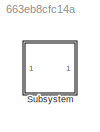
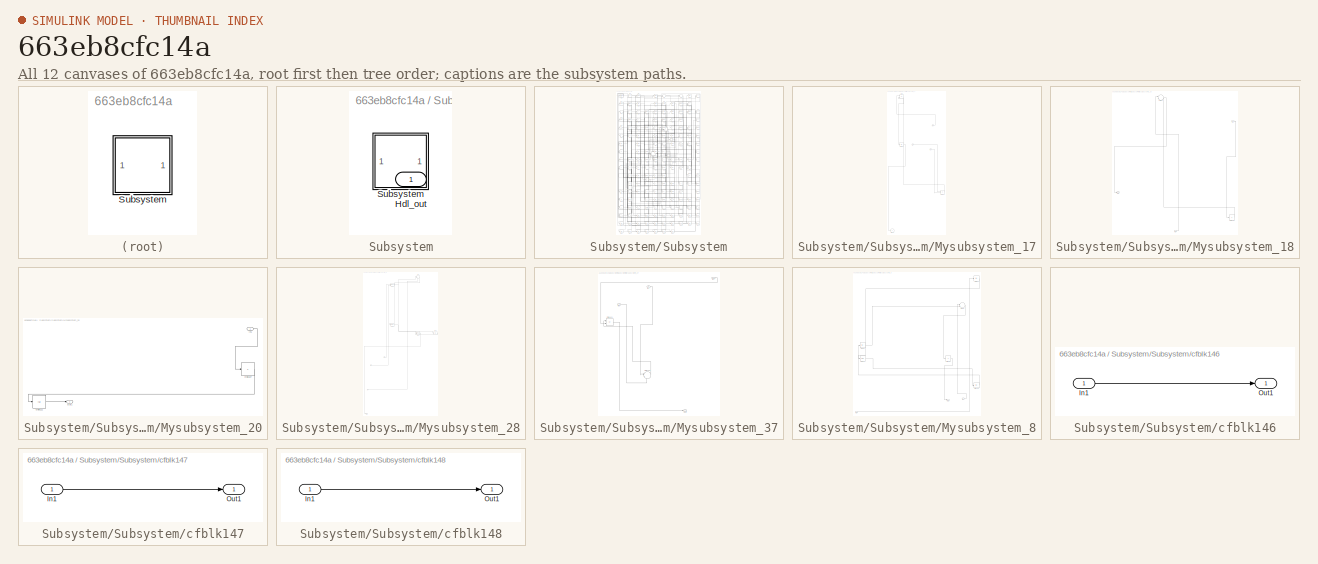
[diagram: thumbnail index - all 12 canvases of the model, root first then tree order]
MODEL slx_663eb8cfc14a
KIND model
CONFIG AbsTol = auto
CONFIG EnableMultiTasking = off
CONFIG FixedStep = auto
CONFIG MaxStep = auto
CONFIG MinStep = auto
CONFIG RelTol = 1e-3
CONFIG SampleTimeConstraint = Unconstrained
CONFIG SolverName = VariableStepAuto
CONFIG StartTime = 0.0
CONFIG StopTime = 10.0
BLOCK [SubSystem] Subsystem
BLOCK [Outport] Subsystem/Hdl_out
  OutDataTypeStr = uint8
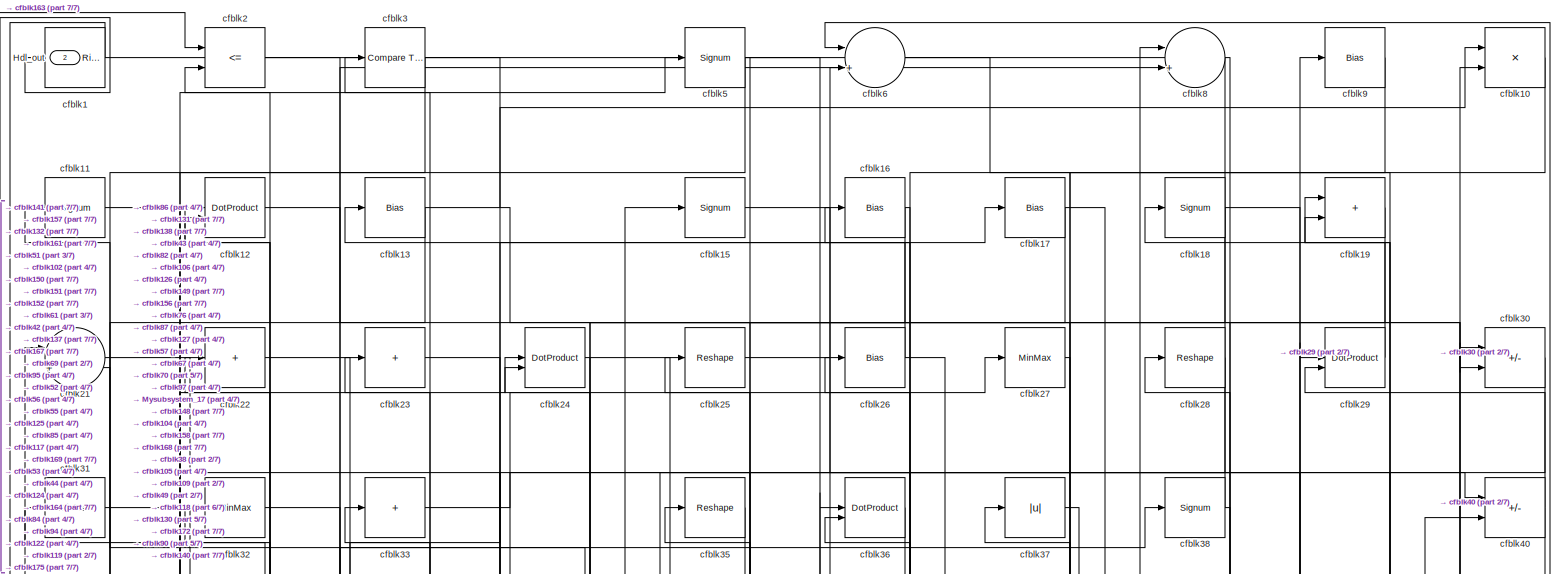
[diagram: Subsystem/Subsystem - part 1/7, full width, top band]
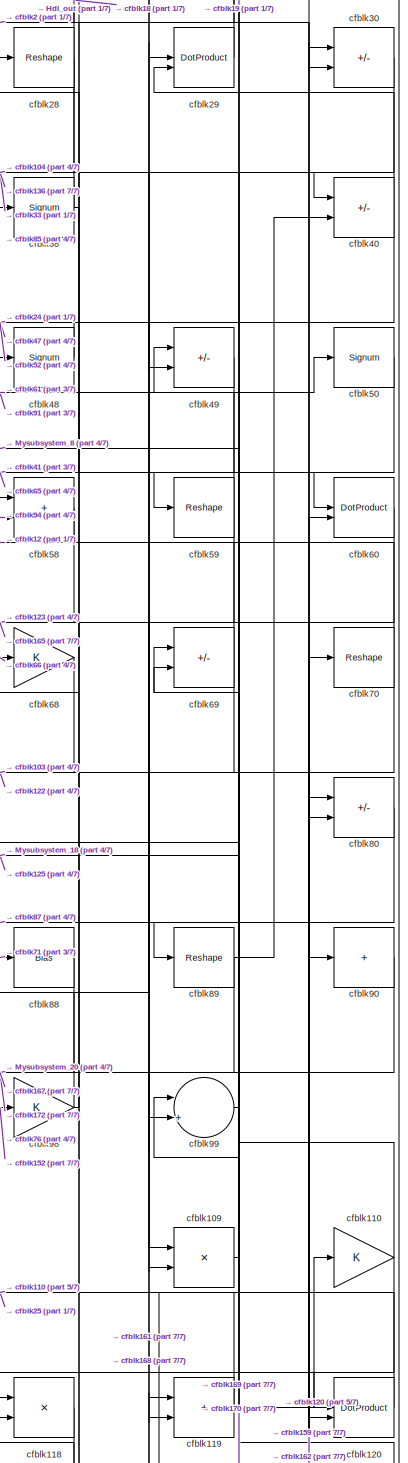
[diagram: Subsystem/Subsystem - part 2/7, middle right region]
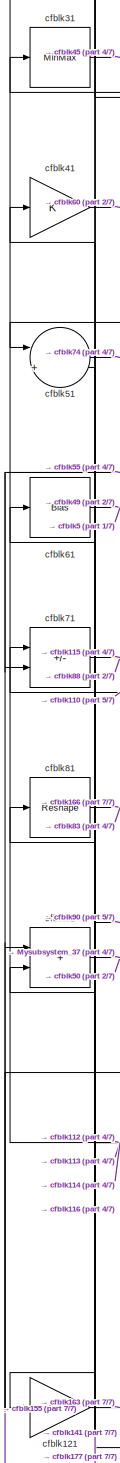
[diagram: Subsystem/Subsystem - part 3/7, middle left region]
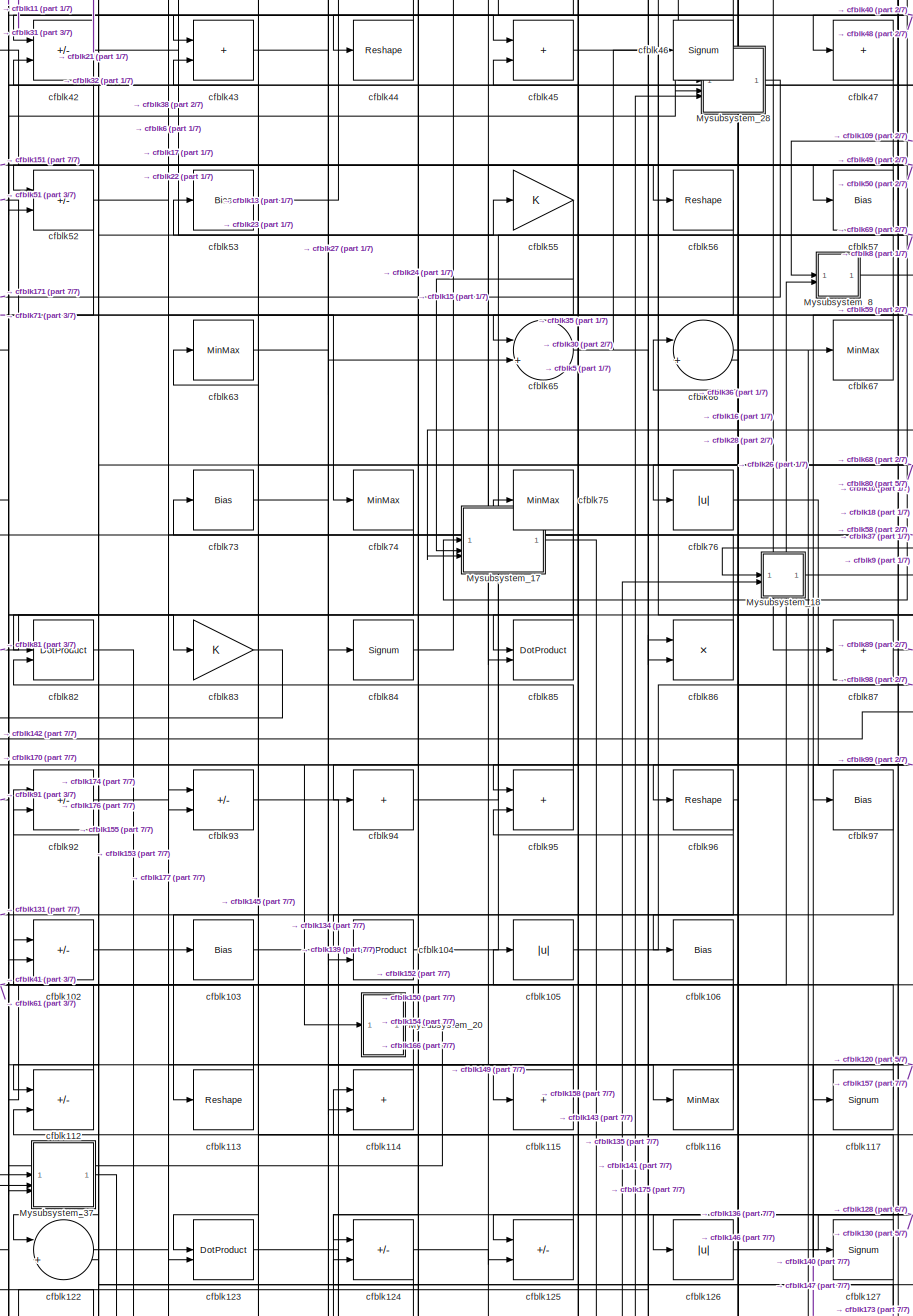
[diagram: Subsystem/Subsystem - part 4/7, central region]
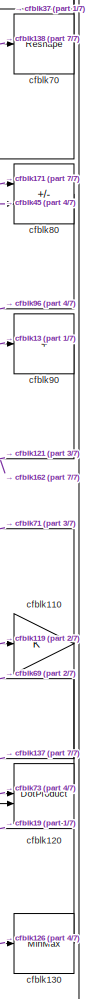
[diagram: Subsystem/Subsystem - part 5/7, middle right region]
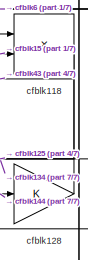
[diagram: Subsystem/Subsystem - part 6/7, bottom right region]
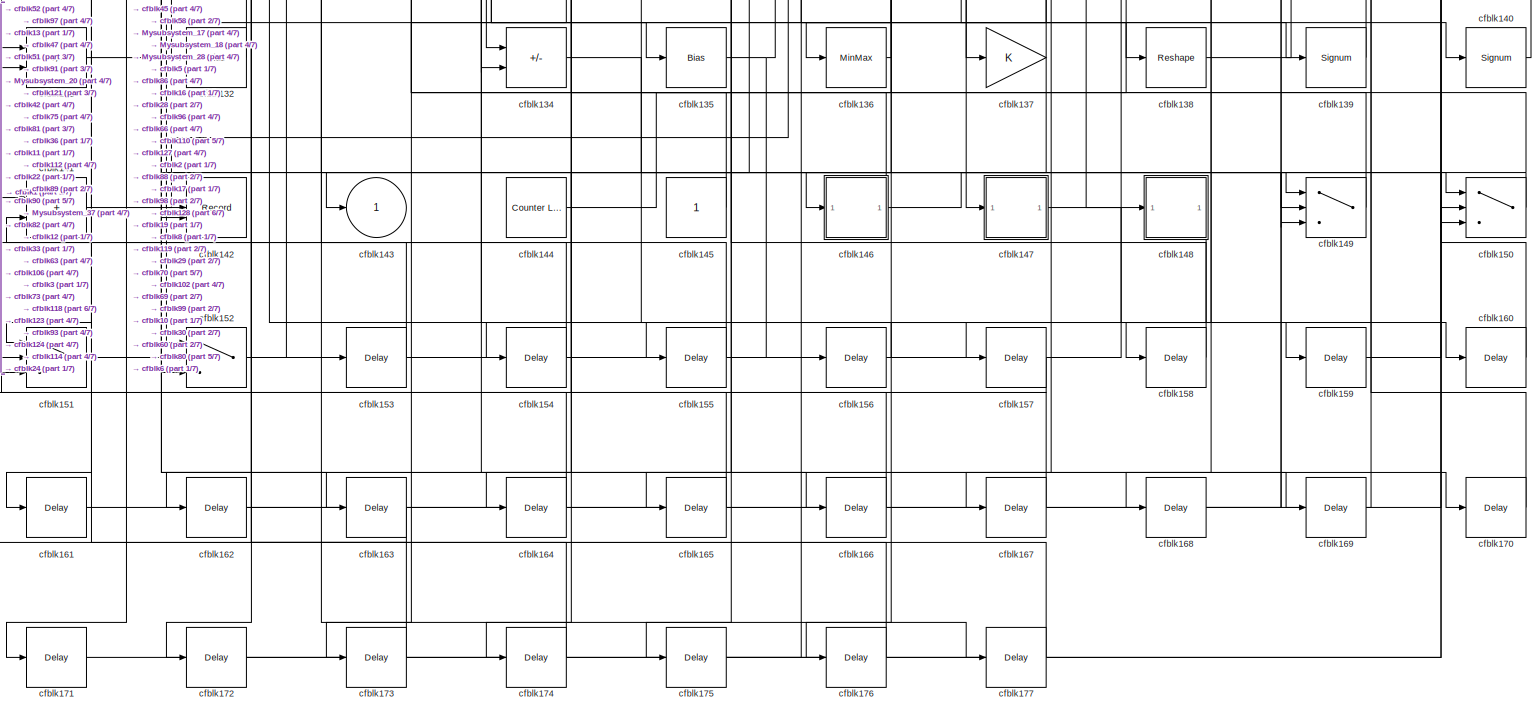
[diagram: Subsystem/Subsystem - part 7/7, full width, bottom band]
BLOCK [SubSystem] Subsystem/Subsystem
BLOCK [Outport] Subsystem/Subsystem/Hdl_out
  OutDataTypeStr = uint8
  Port = 2
BLOCK [SubSystem] Subsystem/Subsystem/Mysubsystem_17
  RTWFcnName = Mysubsystem_17
  RTWFcnNameOpts = User specified
  RTWFileNameOpts = Use function name
  RTWSystemCode = Reusable function
  TreatAsAtomicUnit = on
BLOCK [Inport] Subsystem/Subsystem/Mysubsystem_17/In1
BLOCK [Inport] Subsystem/Subsystem/Mysubsystem_17/In2
  Port = 2
BLOCK [Inport] Subsystem/Subsystem/Mysubsystem_17/In3
  Port = 3
BLOCK [Product] Subsystem/Subsystem/Mysubsystem_17/cfblk108
  Inputs = */
  RndMeth = Zero
  SaturateOnIntegerOverflow = on
BLOCK [Outport] Subsystem/Subsystem/Mysubsystem_17/cfblk143
  VectorParamsAs1DForOutWhenUnconnected = off
BLOCK [Sum] Subsystem/Subsystem/Mysubsystem_17/cfblk4
  IconShape = rectangular
  Inputs = +-
BLOCK [Abs] Subsystem/Subsystem/Mysubsystem_17/cfblk54
  SaturateOnIntegerOverflow = off
BLOCK [SubSystem] Subsystem/Subsystem/Mysubsystem_18
  RTWFcnName = Mysubsystem_18
  RTWFcnNameOpts = User specified
  RTWFileNameOpts = Use function name
  RTWSystemCode = Reusable function
  TreatAsAtomicUnit = on
BLOCK [Inport] Subsystem/Subsystem/Mysubsystem_18/In1
BLOCK [Inport] Subsystem/Subsystem/Mysubsystem_18/In2
  Port = 2
BLOCK [Outport] Subsystem/Subsystem/Mysubsystem_18/Out1
BLOCK [Sum] Subsystem/Subsystem/Mysubsystem_18/cfblk129
  IconShape = rectangular
  Inputs = +
BLOCK [Sum] Subsystem/Subsystem/Mysubsystem_18/cfblk34
  Inputs = |++
BLOCK [SubSystem] Subsystem/Subsystem/Mysubsystem_20
  RTWFcnName = Mysubsystem_20
  RTWFcnNameOpts = User specified
  RTWFileNameOpts = Use function name
  RTWSystemCode = Reusable function
  TreatAsAtomicUnit = on
BLOCK [Inport] Subsystem/Subsystem/Mysubsystem_20/In1
BLOCK [Outport] Subsystem/Subsystem/Mysubsystem_20/Out1
BLOCK [Sum] Subsystem/Subsystem/Mysubsystem_20/cfblk107
  IconShape = rectangular
  Inputs = +
BLOCK [Abs] Subsystem/Subsystem/Mysubsystem_20/cfblk111
  SaturateOnIntegerOverflow = off
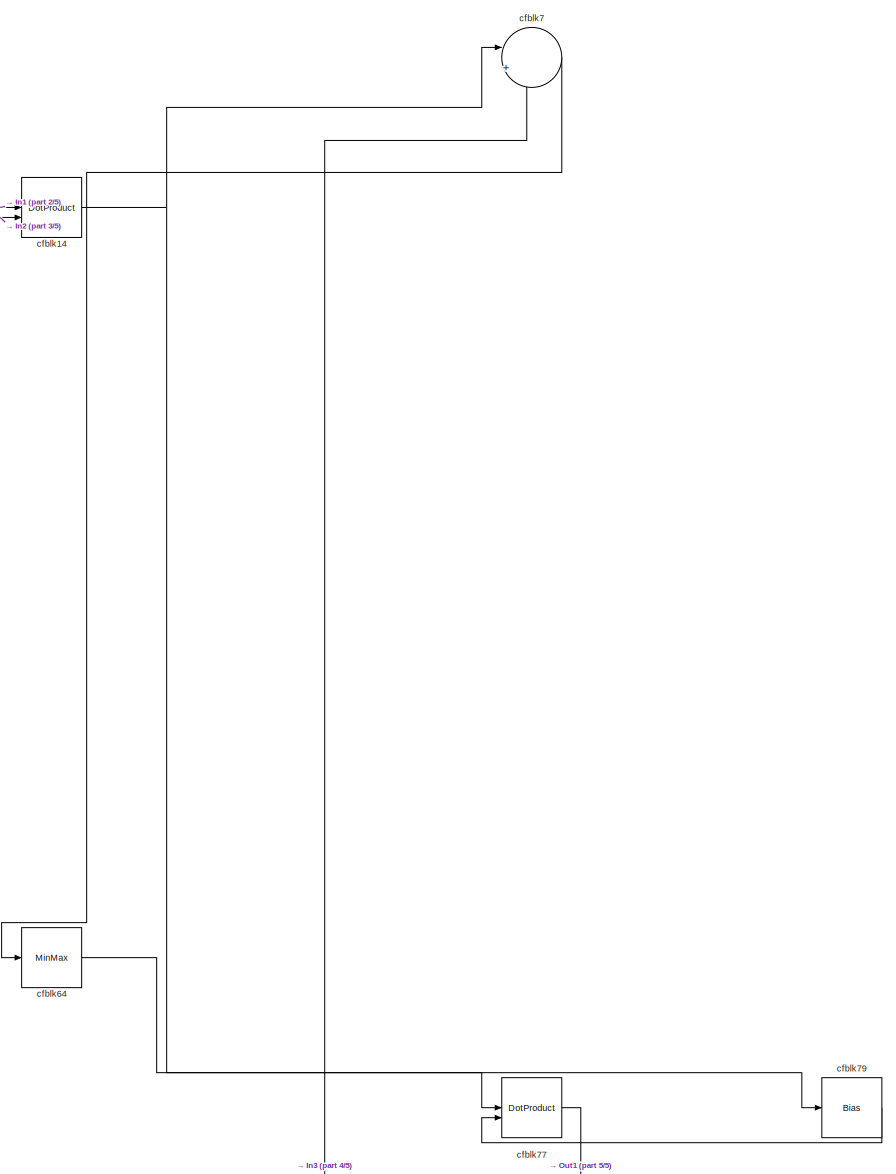
[diagram: Subsystem/Subsystem/Mysubsystem_28 - part 1/5, top right region]
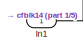
[diagram: Subsystem/Subsystem/Mysubsystem_28 - part 2/5, middle left region]
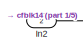
[diagram: Subsystem/Subsystem/Mysubsystem_28 - part 3/5, middle left region]
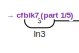
[diagram: Subsystem/Subsystem/Mysubsystem_28 - part 4/5, bottom left region]
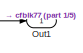
[diagram: Subsystem/Subsystem/Mysubsystem_28 - part 5/5, bottom left region]
BLOCK [SubSystem] Subsystem/Subsystem/Mysubsystem_28
  RTWFcnName = Mysubsystem_28
  RTWFcnNameOpts = User specified
  RTWFileNameOpts = Use function name
  RTWSystemCode = Reusable function
  TreatAsAtomicUnit = on
BLOCK [Inport] Subsystem/Subsystem/Mysubsystem_28/In1
BLOCK [Inport] Subsystem/Subsystem/Mysubsystem_28/In2
  Port = 2
BLOCK [Inport] Subsystem/Subsystem/Mysubsystem_28/In3
  Port = 3
BLOCK [Outport] Subsystem/Subsystem/Mysubsystem_28/Out1
BLOCK [DotProduct] Subsystem/Subsystem/Mysubsystem_28/cfblk14
  OutDataTypeStr = Inherit: Inherit via internal rule
BLOCK [MinMax] Subsystem/Subsystem/Mysubsystem_28/cfblk64
BLOCK [Sum] Subsystem/Subsystem/Mysubsystem_28/cfblk7
  Inputs = |++
BLOCK [DotProduct] Subsystem/Subsystem/Mysubsystem_28/cfblk77
  OutDataTypeStr = Inherit: Inherit via internal rule
BLOCK [Bias] Subsystem/Subsystem/Mysubsystem_28/cfblk79
  Bias = 0.0
  SaturateOnIntegerOverflow = off
BLOCK [SubSystem] Subsystem/Subsystem/Mysubsystem_37
  RTWFcnName = Mysubsystem_37
  RTWFcnNameOpts = User specified
  RTWFileNameOpts = Use function name
  RTWSystemCode = Reusable function
  TreatAsAtomicUnit = on
BLOCK [Inport] Subsystem/Subsystem/Mysubsystem_37/In1
BLOCK [Inport] Subsystem/Subsystem/Mysubsystem_37/In2
  Port = 2
BLOCK [Inport] Subsystem/Subsystem/Mysubsystem_37/In3
  Port = 3
BLOCK [Outport] Subsystem/Subsystem/Mysubsystem_37/Out1
BLOCK [Sum] Subsystem/Subsystem/Mysubsystem_37/cfblk101
  IconShape = rectangular
  Inputs = +-
BLOCK [Sum] Subsystem/Subsystem/Mysubsystem_37/cfblk133
  Inputs = |++
BLOCK [SubSystem] Subsystem/Subsystem/Mysubsystem_8
  RTWFcnName = Mysubsystem_8
  RTWFcnNameOpts = User specified
  RTWFileNameOpts = Use function name
  RTWSystemCode = Reusable function
  TreatAsAtomicUnit = on
BLOCK [Inport] Subsystem/Subsystem/Mysubsystem_8/In1
BLOCK [Inport] Subsystem/Subsystem/Mysubsystem_8/In2
  Port = 2
BLOCK [Outport] Subsystem/Subsystem/Mysubsystem_8/Out1
BLOCK [Abs] Subsystem/Subsystem/Mysubsystem_8/cfblk100
  SaturateOnIntegerOverflow = off
BLOCK [Abs] Subsystem/Subsystem/Mysubsystem_8/cfblk20
  SaturateOnIntegerOverflow = off
BLOCK [Sum] Subsystem/Subsystem/Mysubsystem_8/cfblk39
  Inputs = |++
BLOCK [Abs] Subsystem/Subsystem/Mysubsystem_8/cfblk62
  SaturateOnIntegerOverflow = off
BLOCK [Bias] Subsystem/Subsystem/Mysubsystem_8/cfblk72
  Bias = 0.0
  SaturateOnIntegerOverflow = off
BLOCK [Sum] Subsystem/Subsystem/Mysubsystem_8/cfblk78
  IconShape = rectangular
  Inputs = +
BLOCK [Reference] Subsystem/Subsystem/cfblk1  REF=hdlsllib/Logic and Bit
Operations/Detect Rise
Positive
  SourceBlock = hdlsllib/Logic and Bit\nOperations/Detect Rise\nPositive
  SourceType = Detect Rise Positive
BLOCK [Product] Subsystem/Subsystem/cfblk10
  Inputs = */
  OutDataTypeStr = uint8
  RndMeth = Zero
  SaturateOnIntegerOverflow = on
BLOCK [Sum] Subsystem/Subsystem/cfblk102
  IconShape = rectangular
  Inputs = +-
  OutDataTypeStr = uint8
BLOCK [Bias] Subsystem/Subsystem/cfblk103
  Bias = 0.0
  SaturateOnIntegerOverflow = off
BLOCK [DotProduct] Subsystem/Subsystem/cfblk104
  OutDataTypeStr = uint8
BLOCK [Abs] Subsystem/Subsystem/cfblk105
  OutDataTypeStr = uint8
  SaturateOnIntegerOverflow = off
BLOCK [Bias] Subsystem/Subsystem/cfblk106
  Bias = 0.0
  SaturateOnIntegerOverflow = off
BLOCK [Product] Subsystem/Subsystem/cfblk109
  Inputs = */
  OutDataTypeStr = uint8
  RndMeth = Zero
  SaturateOnIntegerOverflow = on
BLOCK [Signum] Subsystem/Subsystem/cfblk11
BLOCK [Gain] Subsystem/Subsystem/cfblk110
  OutDataTypeStr = uint8
BLOCK [Sum] Subsystem/Subsystem/cfblk112
  IconShape = rectangular
  Inputs = +-
  OutDataTypeStr = uint8
BLOCK [Reshape] Subsystem/Subsystem/cfblk113
BLOCK [Sum] Subsystem/Subsystem/cfblk114
  IconShape = rectangular
  OutDataTypeStr = uint8
BLOCK [Sum] Subsystem/Subsystem/cfblk115
  IconShape = rectangular
  Inputs = +
  OutDataTypeStr = uint8
BLOCK [MinMax] Subsystem/Subsystem/cfblk116
  OutDataTypeStr = uint8
BLOCK [Signum] Subsystem/Subsystem/cfblk117
BLOCK [Product] Subsystem/Subsystem/cfblk118
  Inputs = */
  OutDataTypeStr = uint8
  RndMeth = Zero
  SaturateOnIntegerOverflow = on
BLOCK [Sum] Subsystem/Subsystem/cfblk119
  IconShape = rectangular
  OutDataTypeStr = uint8
BLOCK [DotProduct] Subsystem/Subsystem/cfblk12
  OutDataTypeStr = uint8
BLOCK [DotProduct] Subsystem/Subsystem/cfblk120
  OutDataTypeStr = uint8
BLOCK [Gain] Subsystem/Subsystem/cfblk121
  OutDataTypeStr = uint8
BLOCK [Sum] Subsystem/Subsystem/cfblk122
  Inputs = |++
  OutDataTypeStr = uint8
BLOCK [DotProduct] Subsystem/Subsystem/cfblk123
  OutDataTypeStr = uint8
BLOCK [Sum] Subsystem/Subsystem/cfblk124
  IconShape = rectangular
  Inputs = +-
  OutDataTypeStr = uint8
BLOCK [Sum] Subsystem/Subsystem/cfblk125
  IconShape = rectangular
  Inputs = +-
  OutDataTypeStr = uint8
BLOCK [Abs] Subsystem/Subsystem/cfblk126
  OutDataTypeStr = uint8
  SaturateOnIntegerOverflow = off
BLOCK [Signum] Subsystem/Subsystem/cfblk127
BLOCK [Gain] Subsystem/Subsystem/cfblk128
  OutDataTypeStr = uint8
BLOCK [Bias] Subsystem/Subsystem/cfblk13
  Bias = 0.0
  SaturateOnIntegerOverflow = off
BLOCK [MinMax] Subsystem/Subsystem/cfblk130
  OutDataTypeStr = uint8
BLOCK [Sum] Subsystem/Subsystem/cfblk131
  IconShape = rectangular
  Inputs = +-
  OutDataTypeStr = uint8
BLOCK [Bias] Subsystem/Subsystem/cfblk132
  Bias = 0.0
  SaturateOnIntegerOverflow = off
BLOCK [Sum] Subsystem/Subsystem/cfblk134
  IconShape = rectangular
  Inputs = +-
  OutDataTypeStr = uint8
BLOCK [Bias] Subsystem/Subsystem/cfblk135
  Bias = 0.0
  SaturateOnIntegerOverflow = off
BLOCK [MinMax] Subsystem/Subsystem/cfblk136
  OutDataTypeStr = uint8
BLOCK [Gain] Subsystem/Subsystem/cfblk137
  OutDataTypeStr = uint8
BLOCK [Reshape] Subsystem/Subsystem/cfblk138
BLOCK [Signum] Subsystem/Subsystem/cfblk139
BLOCK [Signum] Subsystem/Subsystem/cfblk140
BLOCK [Sum] Subsystem/Subsystem/cfblk141
  IconShape = rectangular
  OutDataTypeStr = uint8
BLOCK [Record] Subsystem/Subsystem/cfblk142
  CompatibilityTag = XY
  FileSettingsInternal = {"entries":[{"content":{"excelSettings":{"content":{},"type":"Streamout.ExcelSettings"}},"type":"Streamout.FileSettingStorage","uuid":""}],"packageUris":["http:\/\/schema.mathworks.com\/mf0\/streamout_blocks\/R2020a"],"version":"1.0"}
  Layout = [1 1]
  SignalsInternal = {"entries":[{"content":{"signals":[{"content":{"blockPath":[],"dimensions":[1],"domain":"","lineColor":"#a2142f","plots":[1],"port":1,"signalID":16719,"signalName":"cfblk150"},"type":"RecordBlkView.Signal","uuid":""},{"content":{"blockPath":[],"dimensions":[1],"domain":"","lineColor":"#139fff","plots":[1],"port":2,"signalID":16722,"signalName":"cfblk75"},"type":"RecordBlkView.Signal","uuid":""}]},...<+143ch>
  VisualizationBindings = {"xyplotplugin":{"info":[{"series":[{"bindingParametersList":[{"parameter":"X-Axis","signalID":16719,"signalName":"cfblk150"},{"parameter":"Y-Axis","signalID":16722,"signalName":"cfblk75"}],"seriesID":35744}],"subplotID":1}]}}
  st = -1
BLOCK [Outport] Subsystem/Subsystem/cfblk143
  OutDataTypeStr = uint8
  VectorParamsAs1DForOutWhenUnconnected = off
BLOCK [Reference] Subsystem/Subsystem/cfblk144  REF=hdlsllib/Sources/Counter
Limited
  SourceBlock = hdlsllib/Sources/Counter\nLimited
  SourceType = Counter Limited
BLOCK [Constant] Subsystem/Subsystem/cfblk145
  OutDataTypeStr = uint8
  SampleTime = -1
BLOCK [SubSystem] Subsystem/Subsystem/cfblk146
  LibrarySourceBlock = hdlsllib/Ports &\nSubsystems/Subsystem
BLOCK [Inport] Subsystem/Subsystem/cfblk146/In1
BLOCK [Outport] Subsystem/Subsystem/cfblk146/Out1
BLOCK [SubSystem] Subsystem/Subsystem/cfblk147
  LibrarySourceBlock = hdlsllib/Ports &\nSubsystems/Subsystem
BLOCK [Inport] Subsystem/Subsystem/cfblk147/In1
BLOCK [Outport] Subsystem/Subsystem/cfblk147/Out1
BLOCK [SubSystem] Subsystem/Subsystem/cfblk148
  LibrarySourceBlock = hdlsllib/Ports &\nSubsystems/Subsystem
BLOCK [Inport] Subsystem/Subsystem/cfblk148/In1
BLOCK [Outport] Subsystem/Subsystem/cfblk148/Out1
BLOCK [Switch] Subsystem/Subsystem/cfblk149
  InputSameDT = off
  OutDataTypeStr = uint8
  SaturateOnIntegerOverflow = off
BLOCK [Signum] Subsystem/Subsystem/cfblk15
BLOCK [Switch] Subsystem/Subsystem/cfblk150
  InputSameDT = off
  OutDataTypeStr = uint8
  SaturateOnIntegerOverflow = off
BLOCK [Switch] Subsystem/Subsystem/cfblk151
  InputSameDT = off
  OutDataTypeStr = uint8
  SaturateOnIntegerOverflow = off
BLOCK [Switch] Subsystem/Subsystem/cfblk152
  InputSameDT = off
  OutDataTypeStr = uint8
  SaturateOnIntegerOverflow = off
BLOCK [Delay] Subsystem/Subsystem/cfblk153
  InputPortMap = u0
  SampleTime = 1
BLOCK [Delay] Subsystem/Subsystem/cfblk154
  InputPortMap = u0
  SampleTime = 1
BLOCK [Delay] Subsystem/Subsystem/cfblk155
  InputPortMap = u0
  SampleTime = 1
BLOCK [Delay] Subsystem/Subsystem/cfblk156
  InputPortMap = u0
  SampleTime = 1
BLOCK [Delay] Subsystem/Subsystem/cfblk157
  InputPortMap = u0
  SampleTime = 1
BLOCK [Delay] Subsystem/Subsystem/cfblk158
  InputPortMap = u0
  SampleTime = 1
BLOCK [Delay] Subsystem/Subsystem/cfblk159
  InputPortMap = u0
  SampleTime = 1
BLOCK [Bias] Subsystem/Subsystem/cfblk16
  Bias = 0.0
  SaturateOnIntegerOverflow = off
BLOCK [Delay] Subsystem/Subsystem/cfblk160
  InputPortMap = u0
  SampleTime = 1
BLOCK [Delay] Subsystem/Subsystem/cfblk161
  InputPortMap = u0
  SampleTime = 1
BLOCK [Delay] Subsystem/Subsystem/cfblk162
  InputPortMap = u0
  SampleTime = 1
BLOCK [Delay] Subsystem/Subsystem/cfblk163
  InputPortMap = u0
  SampleTime = 1
BLOCK [Delay] Subsystem/Subsystem/cfblk164
  InputPortMap = u0
  SampleTime = 1
BLOCK [Delay] Subsystem/Subsystem/cfblk165
  InputPortMap = u0
  SampleTime = 1
BLOCK [Delay] Subsystem/Subsystem/cfblk166
  InputPortMap = u0
  SampleTime = 1
BLOCK [Delay] Subsystem/Subsystem/cfblk167
  InputPortMap = u0
  SampleTime = 1
BLOCK [Delay] Subsystem/Subsystem/cfblk168
  InputPortMap = u0
  SampleTime = 1
BLOCK [Delay] Subsystem/Subsystem/cfblk169
  InputPortMap = u0
  SampleTime = 1
BLOCK [Bias] Subsystem/Subsystem/cfblk17
  Bias = 0.0
  SaturateOnIntegerOverflow = off
BLOCK [Delay] Subsystem/Subsystem/cfblk170
  InputPortMap = u0
  SampleTime = 1
BLOCK [Delay] Subsystem/Subsystem/cfblk171
  InputPortMap = u0
  SampleTime = 1
BLOCK [Delay] Subsystem/Subsystem/cfblk172
  InputPortMap = u0
  SampleTime = 1
BLOCK [Delay] Subsystem/Subsystem/cfblk173
  InputPortMap = u0
  SampleTime = 1
BLOCK [Delay] Subsystem/Subsystem/cfblk174
  InputPortMap = u0
  SampleTime = 1
BLOCK [Delay] Subsystem/Subsystem/cfblk175
  InputPortMap = u0
  SampleTime = 1
BLOCK [Delay] Subsystem/Subsystem/cfblk176
  InputPortMap = u0
  SampleTime = 1
BLOCK [Delay] Subsystem/Subsystem/cfblk177
  InputPortMap = u0
  SampleTime = 1
BLOCK [Signum] Subsystem/Subsystem/cfblk18
BLOCK [Sum] Subsystem/Subsystem/cfblk19
  IconShape = rectangular
  OutDataTypeStr = uint8
BLOCK [RelationalOperator] Subsystem/Subsystem/cfblk2
  InputSameDT = off
  Operator = <=
  OutDataTypeStr = boolean
BLOCK [Sum] Subsystem/Subsystem/cfblk21
  Inputs = |++
  OutDataTypeStr = uint8
BLOCK [Sum] Subsystem/Subsystem/cfblk22
  IconShape = rectangular
  Inputs = +
  OutDataTypeStr = uint8
BLOCK [Sum] Subsystem/Subsystem/cfblk23
  IconShape = rectangular
  Inputs = +
  OutDataTypeStr = uint8
BLOCK [DotProduct] Subsystem/Subsystem/cfblk24
  OutDataTypeStr = uint8
BLOCK [Reshape] Subsystem/Subsystem/cfblk25
BLOCK [Bias] Subsystem/Subsystem/cfblk26
  Bias = 0.0
  SaturateOnIntegerOverflow = off
BLOCK [MinMax] Subsystem/Subsystem/cfblk27
  OutDataTypeStr = uint8
BLOCK [Reshape] Subsystem/Subsystem/cfblk28
BLOCK [DotProduct] Subsystem/Subsystem/cfblk29
  OutDataTypeStr = uint8
BLOCK [Reference] Subsystem/Subsystem/cfblk3  REF=hdlsllib/Logic and Bit
Operations/Compare
To Constant
  SourceBlock = hdlsllib/Logic and Bit\nOperations/Compare\nTo Constant
  SourceType = Compare To Constant
BLOCK [Sum] Subsystem/Subsystem/cfblk30
  IconShape = rectangular
  Inputs = +-
  OutDataTypeStr = uint8
BLOCK [MinMax] Subsystem/Subsystem/cfblk31
  OutDataTypeStr = uint8
BLOCK [MinMax] Subsystem/Subsystem/cfblk32
  OutDataTypeStr = uint8
BLOCK [Sum] Subsystem/Subsystem/cfblk33
  IconShape = rectangular
  Inputs = +
  OutDataTypeStr = uint8
BLOCK [Reshape] Subsystem/Subsystem/cfblk35
BLOCK [DotProduct] Subsystem/Subsystem/cfblk36
  OutDataTypeStr = uint8
BLOCK [Abs] Subsystem/Subsystem/cfblk37
  OutDataTypeStr = uint8
  SaturateOnIntegerOverflow = off
BLOCK [Signum] Subsystem/Subsystem/cfblk38
BLOCK [Sum] Subsystem/Subsystem/cfblk40
  IconShape = rectangular
  Inputs = +-
  OutDataTypeStr = uint8
BLOCK [Gain] Subsystem/Subsystem/cfblk41
  OutDataTypeStr = uint8
BLOCK [Sum] Subsystem/Subsystem/cfblk42
  IconShape = rectangular
  Inputs = +-
  OutDataTypeStr = uint8
BLOCK [Sum] Subsystem/Subsystem/cfblk43
  IconShape = rectangular
  OutDataTypeStr = uint8
BLOCK [Reshape] Subsystem/Subsystem/cfblk44
BLOCK [Sum] Subsystem/Subsystem/cfblk45
  IconShape = rectangular
  OutDataTypeStr = uint8
BLOCK [Signum] Subsystem/Subsystem/cfblk46
BLOCK [Sum] Subsystem/Subsystem/cfblk47
  IconShape = rectangular
  Inputs = +
  OutDataTypeStr = uint8
BLOCK [Signum] Subsystem/Subsystem/cfblk48
BLOCK [Sum] Subsystem/Subsystem/cfblk49
  IconShape = rectangular
  Inputs = +-
  OutDataTypeStr = uint8
BLOCK [Signum] Subsystem/Subsystem/cfblk5
BLOCK [Signum] Subsystem/Subsystem/cfblk50
BLOCK [Sum] Subsystem/Subsystem/cfblk51
  Inputs = |++
  OutDataTypeStr = uint8
BLOCK [Sum] Subsystem/Subsystem/cfblk52
  IconShape = rectangular
  Inputs = +-
  OutDataTypeStr = uint8
BLOCK [Bias] Subsystem/Subsystem/cfblk53
  Bias = 0.0
  SaturateOnIntegerOverflow = off
BLOCK [Gain] Subsystem/Subsystem/cfblk55
  OutDataTypeStr = uint8
BLOCK [Reshape] Subsystem/Subsystem/cfblk56
BLOCK [Bias] Subsystem/Subsystem/cfblk57
  Bias = 0.0
  SaturateOnIntegerOverflow = off
BLOCK [Sum] Subsystem/Subsystem/cfblk58
  IconShape = rectangular
  OutDataTypeStr = uint8
BLOCK [Reshape] Subsystem/Subsystem/cfblk59
BLOCK [Sum] Subsystem/Subsystem/cfblk6
  Inputs = |++
  OutDataTypeStr = uint8
BLOCK [DotProduct] Subsystem/Subsystem/cfblk60
  OutDataTypeStr = uint8
BLOCK [Bias] Subsystem/Subsystem/cfblk61
  Bias = 0.0
  SaturateOnIntegerOverflow = off
BLOCK [MinMax] Subsystem/Subsystem/cfblk63
  OutDataTypeStr = uint8
BLOCK [Sum] Subsystem/Subsystem/cfblk65
  Inputs = |++
  OutDataTypeStr = uint8
BLOCK [Sum] Subsystem/Subsystem/cfblk66
  Inputs = |++
  OutDataTypeStr = uint8
BLOCK [MinMax] Subsystem/Subsystem/cfblk67
  OutDataTypeStr = uint8
BLOCK [Gain] Subsystem/Subsystem/cfblk68
  OutDataTypeStr = uint8
BLOCK [Sum] Subsystem/Subsystem/cfblk69
  IconShape = rectangular
  Inputs = +-
  OutDataTypeStr = uint8
BLOCK [Reshape] Subsystem/Subsystem/cfblk70
BLOCK [Sum] Subsystem/Subsystem/cfblk71
  IconShape = rectangular
  Inputs = +-
  OutDataTypeStr = uint8
BLOCK [Bias] Subsystem/Subsystem/cfblk73
  Bias = 0.0
  SaturateOnIntegerOverflow = off
BLOCK [MinMax] Subsystem/Subsystem/cfblk74
  OutDataTypeStr = uint8
BLOCK [MinMax] Subsystem/Subsystem/cfblk75
  OutDataTypeStr = uint8
BLOCK [Abs] Subsystem/Subsystem/cfblk76
  OutDataTypeStr = uint8
  SaturateOnIntegerOverflow = off
BLOCK [Sum] Subsystem/Subsystem/cfblk8
  Inputs = |++
  OutDataTypeStr = uint8
BLOCK [Sum] Subsystem/Subsystem/cfblk80
  IconShape = rectangular
  Inputs = +-
  OutDataTypeStr = uint8
BLOCK [Reshape] Subsystem/Subsystem/cfblk81
BLOCK [DotProduct] Subsystem/Subsystem/cfblk82
  OutDataTypeStr = uint8
BLOCK [Gain] Subsystem/Subsystem/cfblk83
  OutDataTypeStr = uint8
BLOCK [Signum] Subsystem/Subsystem/cfblk84
BLOCK [DotProduct] Subsystem/Subsystem/cfblk85
  OutDataTypeStr = uint8
BLOCK [Product] Subsystem/Subsystem/cfblk86
  Inputs = */
  OutDataTypeStr = uint8
  RndMeth = Zero
  SaturateOnIntegerOverflow = on
BLOCK [Sum] Subsystem/Subsystem/cfblk87
  IconShape = rectangular
  Inputs = +
  OutDataTypeStr = uint8
BLOCK [Bias] Subsystem/Subsystem/cfblk88
  Bias = 0.0
  SaturateOnIntegerOverflow = off
BLOCK [Reshape] Subsystem/Subsystem/cfblk89
BLOCK [Bias] Subsystem/Subsystem/cfblk9
  Bias = 0.0
  SaturateOnIntegerOverflow = off
BLOCK [Sum] Subsystem/Subsystem/cfblk90
  IconShape = rectangular
  Inputs = +
  OutDataTypeStr = uint8
BLOCK [Sum] Subsystem/Subsystem/cfblk91
  IconShape = rectangular
  OutDataTypeStr = uint8
BLOCK [Sum] Subsystem/Subsystem/cfblk92
  IconShape = rectangular
  Inputs = +-
  OutDataTypeStr = uint8
BLOCK [Sum] Subsystem/Subsystem/cfblk93
  IconShape = rectangular
  Inputs = +-
  OutDataTypeStr = uint8
BLOCK [Sum] Subsystem/Subsystem/cfblk94
  IconShape = rectangular
  Inputs = +
  OutDataTypeStr = uint8
BLOCK [Sum] Subsystem/Subsystem/cfblk95
  IconShape = rectangular
  OutDataTypeStr = uint8
BLOCK [Reshape] Subsystem/Subsystem/cfblk96
BLOCK [Bias] Subsystem/Subsystem/cfblk97
  Bias = 0.0
  SaturateOnIntegerOverflow = off
BLOCK [Gain] Subsystem/Subsystem/cfblk98
  OutDataTypeStr = uint8
BLOCK [Sum] Subsystem/Subsystem/cfblk99
  Inputs = |++
  OutDataTypeStr = uint8
LINE Subsystem/Subsystem/Mysubsystem_17/In1:1 -> Subsystem/Subsystem/Mysubsystem_17/cfblk4:1
LINE Subsystem/Subsystem/Mysubsystem_17/In2:1 -> Subsystem/Subsystem/Mysubsystem_17/cfblk108:1
LINE Subsystem/Subsystem/Mysubsystem_17/In3:1 -> Subsystem/Subsystem/Mysubsystem_17/cfblk108:2
LINE Subsystem/Subsystem/Mysubsystem_17/cfblk108:1 -> Subsystem/Subsystem/Mysubsystem_17/cfblk4:2
LINE Subsystem/Subsystem/Mysubsystem_17/cfblk4:1 -> Subsystem/Subsystem/Mysubsystem_17/cfblk54:1
LINE Subsystem/Subsystem/Mysubsystem_17/cfblk54:1 -> Subsystem/Subsystem/Mysubsystem_17/cfblk143:1
LINE Subsystem/Subsystem/Mysubsystem_17:1 -> Subsystem/Subsystem/cfblk143:1
LINE Subsystem/Subsystem/Mysubsystem_18/In1:1 -> Subsystem/Subsystem/Mysubsystem_18/cfblk129:1
LINE Subsystem/Subsystem/Mysubsystem_18/In2:1 -> Subsystem/Subsystem/Mysubsystem_18/cfblk34:1
LINE Subsystem/Subsystem/Mysubsystem_18/cfblk129:1 -> Subsystem/Subsystem/Mysubsystem_18/cfblk34:2
LINE Subsystem/Subsystem/Mysubsystem_18/cfblk34:1 -> Subsystem/Subsystem/Mysubsystem_18/Out1:1
LINE Subsystem/Subsystem/Mysubsystem_18:1 -> Subsystem/Subsystem/Mysubsystem_37:1
LINE Subsystem/Subsystem/Mysubsystem_20/In1:1 -> Subsystem/Subsystem/Mysubsystem_20/cfblk107:1
LINE Subsystem/Subsystem/Mysubsystem_20/cfblk107:1 -> Subsystem/Subsystem/Mysubsystem_20/cfblk111:1
LINE Subsystem/Subsystem/Mysubsystem_20/cfblk111:1 -> Subsystem/Subsystem/Mysubsystem_20/Out1:1
NET Subsystem/Subsystem/Mysubsystem_20:1 -> Subsystem/Subsystem/Mysubsystem_28:2, Subsystem/Subsystem/Mysubsystem_8:2, Subsystem/Subsystem/cfblk170:1
LINE Subsystem/Subsystem/Mysubsystem_28/In1:1 -> Subsystem/Subsystem/Mysubsystem_28/cfblk14:1
LINE Subsystem/Subsystem/Mysubsystem_28/In2:1 -> Subsystem/Subsystem/Mysubsystem_28/cfblk14:2
LINE Subsystem/Subsystem/Mysubsystem_28/In3:1 -> Subsystem/Subsystem/Mysubsystem_28/cfblk7:2
NET Subsystem/Subsystem/Mysubsystem_28/cfblk14:1 -> Subsystem/Subsystem/Mysubsystem_28/cfblk79:1, Subsystem/Subsystem/Mysubsystem_28/cfblk7:1
LINE Subsystem/Subsystem/Mysubsystem_28/cfblk64:1 -> Subsystem/Subsystem/Mysubsystem_28/cfblk77:1
LINE Subsystem/Subsystem/Mysubsystem_28/cfblk77:1 -> Subsystem/Subsystem/Mysubsystem_28/Out1:1
LINE Subsystem/Subsystem/Mysubsystem_28/cfblk79:1 -> Subsystem/Subsystem/Mysubsystem_28/cfblk77:2
LINE Subsystem/Subsystem/Mysubsystem_28/cfblk7:1 -> Subsystem/Subsystem/Mysubsystem_28/cfblk64:1
LINE Subsystem/Subsystem/Mysubsystem_28:1 -> Subsystem/Subsystem/cfblk171:1
LINE Subsystem/Subsystem/Mysubsystem_37/In1:1 -> Subsystem/Subsystem/Mysubsystem_37/cfblk101:2
LINE Subsystem/Subsystem/Mysubsystem_37/In2:1 -> Subsystem/Subsystem/Mysubsystem_37/cfblk133:1
LINE Subsystem/Subsystem/Mysubsystem_37/In3:1 -> Subsystem/Subsystem/Mysubsystem_37/cfblk133:2
LINE Subsystem/Subsystem/Mysubsystem_37/cfblk101:1 -> Subsystem/Subsystem/Mysubsystem_37/Out1:1
LINE Subsystem/Subsystem/Mysubsystem_37/cfblk133:1 -> Subsystem/Subsystem/Mysubsystem_37/cfblk101:1
LINE Subsystem/Subsystem/Mysubsystem_37:1 -> Subsystem/Subsystem/cfblk155:1
LINE Subsystem/Subsystem/Mysubsystem_8/In1:1 -> Subsystem/Subsystem/Mysubsystem_8/cfblk39:1
LINE Subsystem/Subsystem/Mysubsystem_8/In2:1 -> Subsystem/Subsystem/Mysubsystem_8/cfblk20:1
LINE Subsystem/Subsystem/Mysubsystem_8/cfblk100:1 -> Subsystem/Subsystem/Mysubsystem_8/cfblk62:1
LINE Subsystem/Subsystem/Mysubsystem_8/cfblk20:1 -> Subsystem/Subsystem/Mysubsystem_8/cfblk72:1
LINE Subsystem/Subsystem/Mysubsystem_8/cfblk39:1 -> Subsystem/Subsystem/Mysubsystem_8/cfblk78:1
LINE Subsystem/Subsystem/Mysubsystem_8/cfblk62:1 -> Subsystem/Subsystem/Mysubsystem_8/cfblk39:2
LINE Subsystem/Subsystem/Mysubsystem_8/cfblk72:1 -> Subsystem/Subsystem/Mysubsystem_8/cfblk100:1
LINE Subsystem/Subsystem/Mysubsystem_8/cfblk78:1 -> Subsystem/Subsystem/Mysubsystem_8/Out1:1
LINE Subsystem/Subsystem/Mysubsystem_8:1 -> Subsystem/Subsystem/Mysubsystem_17:3
NET Subsystem/Subsystem/cfblk102:1 -> Subsystem/Subsystem/cfblk113:1, Subsystem/Subsystem/cfblk177:1
LINE Subsystem/Subsystem/cfblk103:1 -> Subsystem/Subsystem/Mysubsystem_28:1
LINE Subsystem/Subsystem/cfblk104:1 -> Subsystem/Subsystem/cfblk8:1
LINE Subsystem/Subsystem/cfblk105:1 -> Subsystem/Subsystem/cfblk9:1
LINE Subsystem/Subsystem/cfblk106:1 -> Subsystem/Subsystem/cfblk134:2
LINE Subsystem/Subsystem/cfblk109:1 -> Subsystem/Subsystem/Mysubsystem_8:1
NET Subsystem/Subsystem/cfblk10:1 -> Subsystem/Subsystem/cfblk67:1, Subsystem/Subsystem/cfblk76:1
NET Subsystem/Subsystem/cfblk110:1 -> Subsystem/Subsystem/cfblk137:1, Subsystem/Subsystem/cfblk71:1
LINE Subsystem/Subsystem/cfblk112:1 -> Subsystem/Subsystem/cfblk61:1
LINE Subsystem/Subsystem/cfblk113:1 -> Subsystem/Subsystem/cfblk31:1
LINE Subsystem/Subsystem/cfblk114:1 -> Subsystem/Subsystem/cfblk41:1
LINE Subsystem/Subsystem/cfblk115:1 -> Subsystem/Subsystem/cfblk92:1
LINE Subsystem/Subsystem/cfblk116:1 -> Subsystem/Subsystem/cfblk81:1
LINE Subsystem/Subsystem/cfblk117:1 -> Subsystem/Subsystem/cfblk105:1
LINE Subsystem/Subsystem/cfblk118:1 -> Subsystem/Subsystem/cfblk134:1
NET Subsystem/Subsystem/cfblk119:1 -> Subsystem/Subsystem/cfblk110:1, Subsystem/Subsystem/cfblk25:1
NET Subsystem/Subsystem/cfblk11:1 -> Subsystem/Subsystem/cfblk102:2, Subsystem/Subsystem/cfblk150:3
LINE Subsystem/Subsystem/cfblk120:1 -> Subsystem/Subsystem/cfblk69:1
LINE Subsystem/Subsystem/cfblk121:1 -> Subsystem/Subsystem/cfblk163:1
LINE Subsystem/Subsystem/cfblk122:1 -> Subsystem/Subsystem/cfblk38:1
LINE Subsystem/Subsystem/cfblk123:1 -> Subsystem/Subsystem/cfblk135:1
NET Subsystem/Subsystem/cfblk124:1 -> Subsystem/Subsystem/cfblk149:1, Subsystem/Subsystem/cfblk149:3, Subsystem/Subsystem/cfblk152:1
LINE Subsystem/Subsystem/cfblk125:1 -> Subsystem/Subsystem/cfblk23:1
LINE Subsystem/Subsystem/cfblk126:1 -> Subsystem/Subsystem/cfblk130:1
NET Subsystem/Subsystem/cfblk127:1 -> Subsystem/Subsystem/cfblk173:1, Subsystem/Subsystem/cfblk26:1, Subsystem/Subsystem/cfblk92:2
NET Subsystem/Subsystem/cfblk128:1 -> Subsystem/Subsystem/cfblk125:1, Subsystem/Subsystem/cfblk43:2
LINE Subsystem/Subsystem/cfblk12:1 -> Subsystem/Subsystem/cfblk150:1
LINE Subsystem/Subsystem/cfblk130:1 -> Subsystem/Subsystem/cfblk19:1
NET Subsystem/Subsystem/cfblk131:1 -> Subsystem/Subsystem/cfblk132:1, Subsystem/Subsystem/cfblk36:1
LINE Subsystem/Subsystem/cfblk132:1 -> Subsystem/Subsystem/cfblk11:1
LINE Subsystem/Subsystem/cfblk134:1 -> Subsystem/Subsystem/cfblk160:1
NET Subsystem/Subsystem/cfblk135:1 -> Subsystem/Subsystem/Mysubsystem_18:2, Subsystem/Subsystem/cfblk156:1
LINE Subsystem/Subsystem/cfblk136:1 -> Subsystem/Subsystem/cfblk66:1
NET Subsystem/Subsystem/cfblk137:1 -> Subsystem/Subsystem/cfblk174:1, Subsystem/Subsystem/cfblk2:2
LINE Subsystem/Subsystem/cfblk138:1 -> Subsystem/Subsystem/cfblk70:1
LINE Subsystem/Subsystem/cfblk139:1 -> Subsystem/Subsystem/cfblk102:1
NET Subsystem/Subsystem/cfblk13:1 -> Subsystem/Subsystem/cfblk10:1, Subsystem/Subsystem/cfblk161:1, Subsystem/Subsystem/cfblk90:1
LINE Subsystem/Subsystem/cfblk140:1 -> Subsystem/Subsystem/cfblk6:1
NET Subsystem/Subsystem/cfblk141:1 -> Subsystem/Subsystem/Mysubsystem_28:3, Subsystem/Subsystem/cfblk91:2
LINE Subsystem/Subsystem/cfblk144:1 -> Subsystem/Subsystem/cfblk128:1
LINE Subsystem/Subsystem/cfblk145:1 -> Subsystem/Subsystem/cfblk63:1
LINE Subsystem/Subsystem/cfblk146/In1:1 -> Subsystem/Subsystem/cfblk146/Out1:1
NET Subsystem/Subsystem/cfblk146:1 -> Subsystem/Subsystem/cfblk149:2, Subsystem/Subsystem/cfblk73:1
LINE Subsystem/Subsystem/cfblk147/In1:1 -> Subsystem/Subsystem/cfblk147/Out1:1
LINE Subsystem/Subsystem/cfblk147:1 -> Subsystem/Subsystem/cfblk159:1
LINE Subsystem/Subsystem/cfblk148/In1:1 -> Subsystem/Subsystem/cfblk148/Out1:1
LINE Subsystem/Subsystem/cfblk148:1 -> Subsystem/Subsystem/cfblk176:1
NET Subsystem/Subsystem/cfblk149:1 -> Subsystem/Subsystem/cfblk16:1, Subsystem/Subsystem/cfblk33:1
NET Subsystem/Subsystem/cfblk150:1 -> Subsystem/Subsystem/cfblk114:1, Subsystem/Subsystem/cfblk142:1
LINE Subsystem/Subsystem/cfblk151:1 -> Subsystem/Subsystem/cfblk24:2
NET Subsystem/Subsystem/cfblk152:1 -> Subsystem/Subsystem/cfblk22:1, Subsystem/Subsystem/cfblk98:1
LINE Subsystem/Subsystem/cfblk153:1 -> Subsystem/Subsystem/cfblk141:2
LINE Subsystem/Subsystem/cfblk154:1 -> Subsystem/Subsystem/cfblk93:1
LINE Subsystem/Subsystem/cfblk155:1 -> Subsystem/Subsystem/cfblk91:1
LINE Subsystem/Subsystem/cfblk156:1 -> Subsystem/Subsystem/cfblk36:2
LINE Subsystem/Subsystem/cfblk157:1 -> Subsystem/Subsystem/cfblk1:1
LINE Subsystem/Subsystem/cfblk158:1 -> Subsystem/Subsystem/cfblk45:2
LINE Subsystem/Subsystem/cfblk159:1 -> Subsystem/Subsystem/cfblk30:1
LINE Subsystem/Subsystem/cfblk15:1 -> Subsystem/Subsystem/cfblk118:2
LINE Subsystem/Subsystem/cfblk160:1 -> Subsystem/Subsystem/cfblk150:2
LINE Subsystem/Subsystem/cfblk161:1 -> Subsystem/Subsystem/cfblk119:1
LINE Subsystem/Subsystem/cfblk162:1 -> Subsystem/Subsystem/cfblk60:2
LINE Subsystem/Subsystem/cfblk163:1 -> Subsystem/Subsystem/cfblk2:1
LINE Subsystem/Subsystem/cfblk164:1 -> Subsystem/Subsystem/cfblk151:2
LINE Subsystem/Subsystem/cfblk165:1 -> Subsystem/Subsystem/cfblk131:1
LINE Subsystem/Subsystem/cfblk166:1 -> Subsystem/Subsystem/cfblk124:2
LINE Subsystem/Subsystem/cfblk167:1 -> Subsystem/Subsystem/cfblk12:2
LINE Subsystem/Subsystem/cfblk168:1 -> Subsystem/Subsystem/cfblk29:1
LINE Subsystem/Subsystem/cfblk169:1 -> Subsystem/Subsystem/cfblk99:1
NET Subsystem/Subsystem/cfblk16:1 -> Subsystem/Subsystem/cfblk106:1, Subsystem/Subsystem/cfblk126:1, Subsystem/Subsystem/cfblk94:1
LINE Subsystem/Subsystem/cfblk170:1 -> Subsystem/Subsystem/cfblk69:2
LINE Subsystem/Subsystem/cfblk171:1 -> Subsystem/Subsystem/cfblk80:1
LINE Subsystem/Subsystem/cfblk172:1 -> Subsystem/Subsystem/cfblk10:2
LINE Subsystem/Subsystem/cfblk173:1 -> Subsystem/Subsystem/cfblk112:2
LINE Subsystem/Subsystem/cfblk174:1 -> Subsystem/Subsystem/cfblk82:2
LINE Subsystem/Subsystem/cfblk175:1 -> Subsystem/Subsystem/cfblk86:1
LINE Subsystem/Subsystem/cfblk176:1 -> Subsystem/Subsystem/cfblk42:2
LINE Subsystem/Subsystem/cfblk177:1 -> Subsystem/Subsystem/cfblk51:2
NET Subsystem/Subsystem/cfblk17:1 -> Subsystem/Subsystem/cfblk148:1, Subsystem/Subsystem/cfblk175:1
NET Subsystem/Subsystem/cfblk18:1 -> Subsystem/Subsystem/cfblk109:1, Subsystem/Subsystem/cfblk124:1, Subsystem/Subsystem/cfblk127:1
LINE Subsystem/Subsystem/cfblk19:1 -> Subsystem/Subsystem/cfblk168:1
LINE Subsystem/Subsystem/cfblk1:1 -> Subsystem/Subsystem/cfblk141:1
LINE Subsystem/Subsystem/cfblk21:1 -> Subsystem/Subsystem/cfblk84:1
LINE Subsystem/Subsystem/cfblk22:1 -> Subsystem/Subsystem/cfblk55:1
LINE Subsystem/Subsystem/cfblk23:1 -> Subsystem/Subsystem/cfblk117:1
NET Subsystem/Subsystem/cfblk24:1 -> Subsystem/Subsystem/cfblk109:2, Subsystem/Subsystem/cfblk164:1
NET Subsystem/Subsystem/cfblk25:1 -> Subsystem/Subsystem/cfblk49:2, Subsystem/Subsystem/cfblk8:2
NET Subsystem/Subsystem/cfblk26:1 -> Subsystem/Subsystem/cfblk3:1, Subsystem/Subsystem/cfblk87:1
LINE Subsystem/Subsystem/cfblk27:1 -> Subsystem/Subsystem/cfblk57:1
NET Subsystem/Subsystem/cfblk28:1 -> Subsystem/Subsystem/cfblk104:2, Subsystem/Subsystem/cfblk136:1
LINE Subsystem/Subsystem/cfblk29:1 -> Subsystem/Subsystem/cfblk18:1
LINE Subsystem/Subsystem/cfblk2:1 -> Subsystem/Subsystem/cfblk30:2
NET Subsystem/Subsystem/cfblk30:1 -> Subsystem/Subsystem/cfblk59:1, Subsystem/Subsystem/cfblk85:1, Subsystem/Subsystem/cfblk85:2
LINE Subsystem/Subsystem/cfblk31:1 -> Subsystem/Subsystem/cfblk45:1
LINE Subsystem/Subsystem/cfblk32:1 -> Subsystem/Subsystem/cfblk56:1
LINE Subsystem/Subsystem/cfblk33:1 -> Subsystem/Subsystem/cfblk40:1
NET Subsystem/Subsystem/cfblk35:1 -> Subsystem/Subsystem/cfblk122:2, Subsystem/Subsystem/cfblk42:1
NET Subsystem/Subsystem/cfblk36:1 -> Subsystem/Subsystem/cfblk43:1, Subsystem/Subsystem/cfblk82:1
LINE Subsystem/Subsystem/cfblk37:1 -> Subsystem/Subsystem/Mysubsystem_17:1
NET Subsystem/Subsystem/cfblk38:1 -> Subsystem/Subsystem/Hdl_out:1, Subsystem/Subsystem/cfblk58:1
NET Subsystem/Subsystem/cfblk3:1 -> Subsystem/Subsystem/cfblk152:3, Subsystem/Subsystem/cfblk169:1
NET Subsystem/Subsystem/cfblk40:1 -> Subsystem/Subsystem/cfblk19:2, Subsystem/Subsystem/cfblk52:2
LINE Subsystem/Subsystem/cfblk41:1 -> Subsystem/Subsystem/cfblk60:1
NET Subsystem/Subsystem/cfblk42:1 -> Subsystem/Subsystem/cfblk152:2, Subsystem/Subsystem/cfblk17:1, Subsystem/Subsystem/cfblk21:1
LINE Subsystem/Subsystem/cfblk43:1 -> Subsystem/Subsystem/cfblk65:2
LINE Subsystem/Subsystem/cfblk44:1 -> Subsystem/Subsystem/cfblk21:2
LINE Subsystem/Subsystem/cfblk45:1 -> Subsystem/Subsystem/cfblk80:2
LINE Subsystem/Subsystem/cfblk46:1 -> Subsystem/Subsystem/cfblk44:1
LINE Subsystem/Subsystem/cfblk47:1 -> Subsystem/Subsystem/cfblk151:1
LINE Subsystem/Subsystem/cfblk48:1 -> Subsystem/Subsystem/cfblk47:1
LINE Subsystem/Subsystem/cfblk49:1 -> Subsystem/Subsystem/cfblk65:1
NET Subsystem/Subsystem/cfblk50:1 -> Subsystem/Subsystem/Mysubsystem_18:1, Subsystem/Subsystem/cfblk125:2
LINE Subsystem/Subsystem/cfblk51:1 -> Subsystem/Subsystem/cfblk74:1
NET Subsystem/Subsystem/cfblk52:1 -> Subsystem/Subsystem/cfblk151:3, Subsystem/Subsystem/cfblk6:2
LINE Subsystem/Subsystem/cfblk53:1 -> Subsystem/Subsystem/cfblk27:1
NET Subsystem/Subsystem/cfblk55:1 -> Subsystem/Subsystem/Mysubsystem_17:2, Subsystem/Subsystem/cfblk71:2
LINE Subsystem/Subsystem/cfblk56:1 -> Subsystem/Subsystem/cfblk123:2
LINE Subsystem/Subsystem/cfblk57:1 -> Subsystem/Subsystem/cfblk52:1
LINE Subsystem/Subsystem/cfblk58:1 -> Subsystem/Subsystem/cfblk165:1
NET Subsystem/Subsystem/cfblk59:1 -> Subsystem/Subsystem/cfblk123:1, Subsystem/Subsystem/cfblk28:1
NET Subsystem/Subsystem/cfblk5:1 -> Subsystem/Subsystem/cfblk138:1, Subsystem/Subsystem/cfblk51:1, Subsystem/Subsystem/cfblk95:1
LINE Subsystem/Subsystem/cfblk60:1 -> Subsystem/Subsystem/cfblk119:2
NET Subsystem/Subsystem/cfblk61:1 -> Subsystem/Subsystem/cfblk49:1, Subsystem/Subsystem/cfblk5:1
LINE Subsystem/Subsystem/cfblk63:1 -> Subsystem/Subsystem/cfblk114:2
NET Subsystem/Subsystem/cfblk65:1 -> Subsystem/Subsystem/cfblk46:1, Subsystem/Subsystem/cfblk86:2
NET Subsystem/Subsystem/cfblk66:1 -> Subsystem/Subsystem/cfblk140:1, Subsystem/Subsystem/cfblk147:1
LINE Subsystem/Subsystem/cfblk67:1 -> Subsystem/Subsystem/cfblk53:1
LINE Subsystem/Subsystem/cfblk68:1 -> Subsystem/Subsystem/cfblk122:1
NET Subsystem/Subsystem/cfblk69:1 -> Subsystem/Subsystem/cfblk103:1, Subsystem/Subsystem/cfblk12:1
LINE Subsystem/Subsystem/cfblk6:1 -> Subsystem/Subsystem/cfblk118:1
NET Subsystem/Subsystem/cfblk70:1 -> Subsystem/Subsystem/cfblk120:2, Subsystem/Subsystem/cfblk37:1
NET Subsystem/Subsystem/cfblk71:1 -> Subsystem/Subsystem/cfblk115:1, Subsystem/Subsystem/cfblk88:1
NET Subsystem/Subsystem/cfblk73:1 -> Subsystem/Subsystem/cfblk120:1, Subsystem/Subsystem/cfblk157:1
LINE Subsystem/Subsystem/cfblk74:1 -> Subsystem/Subsystem/cfblk93:2
NET Subsystem/Subsystem/cfblk75:1 -> Subsystem/Subsystem/cfblk104:1, Subsystem/Subsystem/cfblk142:2
LINE Subsystem/Subsystem/cfblk76:1 -> Subsystem/Subsystem/cfblk99:2
LINE Subsystem/Subsystem/cfblk80:1 -> Subsystem/Subsystem/cfblk96:1
NET Subsystem/Subsystem/cfblk81:1 -> Subsystem/Subsystem/cfblk166:1, Subsystem/Subsystem/cfblk83:1
NET Subsystem/Subsystem/cfblk82:1 -> Subsystem/Subsystem/cfblk112:1, Subsystem/Subsystem/cfblk153:1
LINE Subsystem/Subsystem/cfblk83:1 -> Subsystem/Subsystem/Mysubsystem_37:2
NET Subsystem/Subsystem/cfblk84:1 -> Subsystem/Subsystem/cfblk15:1, Subsystem/Subsystem/cfblk24:1
LINE Subsystem/Subsystem/cfblk85:1 -> Subsystem/Subsystem/cfblk13:1
LINE Subsystem/Subsystem/cfblk86:1 -> Subsystem/Subsystem/cfblk35:1
LINE Subsystem/Subsystem/cfblk87:1 -> Subsystem/Subsystem/cfblk89:1
LINE Subsystem/Subsystem/cfblk88:1 -> Subsystem/Subsystem/cfblk167:1
NET Subsystem/Subsystem/cfblk89:1 -> Subsystem/Subsystem/Mysubsystem_20:1, Subsystem/Subsystem/cfblk172:1, Subsystem/Subsystem/cfblk40:2
LINE Subsystem/Subsystem/cfblk8:1 -> Subsystem/Subsystem/cfblk158:1
NET Subsystem/Subsystem/cfblk90:1 -> Subsystem/Subsystem/cfblk121:1, Subsystem/Subsystem/cfblk162:1
NET Subsystem/Subsystem/cfblk91:1 -> Subsystem/Subsystem/Mysubsystem_37:3, Subsystem/Subsystem/cfblk50:1
NET Subsystem/Subsystem/cfblk92:1 -> Subsystem/Subsystem/cfblk116:1, Subsystem/Subsystem/cfblk75:1
LINE Subsystem/Subsystem/cfblk93:1 -> Subsystem/Subsystem/cfblk139:1
LINE Subsystem/Subsystem/cfblk94:1 -> Subsystem/Subsystem/cfblk58:2
LINE Subsystem/Subsystem/cfblk95:1 -> Subsystem/Subsystem/cfblk32:1
NET Subsystem/Subsystem/cfblk96:1 -> Subsystem/Subsystem/cfblk146:1, Subsystem/Subsystem/cfblk154:1, Subsystem/Subsystem/cfblk95:2
LINE Subsystem/Subsystem/cfblk97:1 -> Subsystem/Subsystem/cfblk131:2
NET Subsystem/Subsystem/cfblk98:1 -> Subsystem/Subsystem/cfblk48:1, Subsystem/Subsystem/cfblk66:2, Subsystem/Subsystem/cfblk68:1
LINE Subsystem/Subsystem/cfblk99:1 -> Subsystem/Subsystem/cfblk29:2
LINE Subsystem/Subsystem/cfblk9:1 -> Subsystem/Subsystem/cfblk97:1
note: NET lines group one-source signal fan-out (src -> all destinations, sorted); 1:1 wires keep LINE
